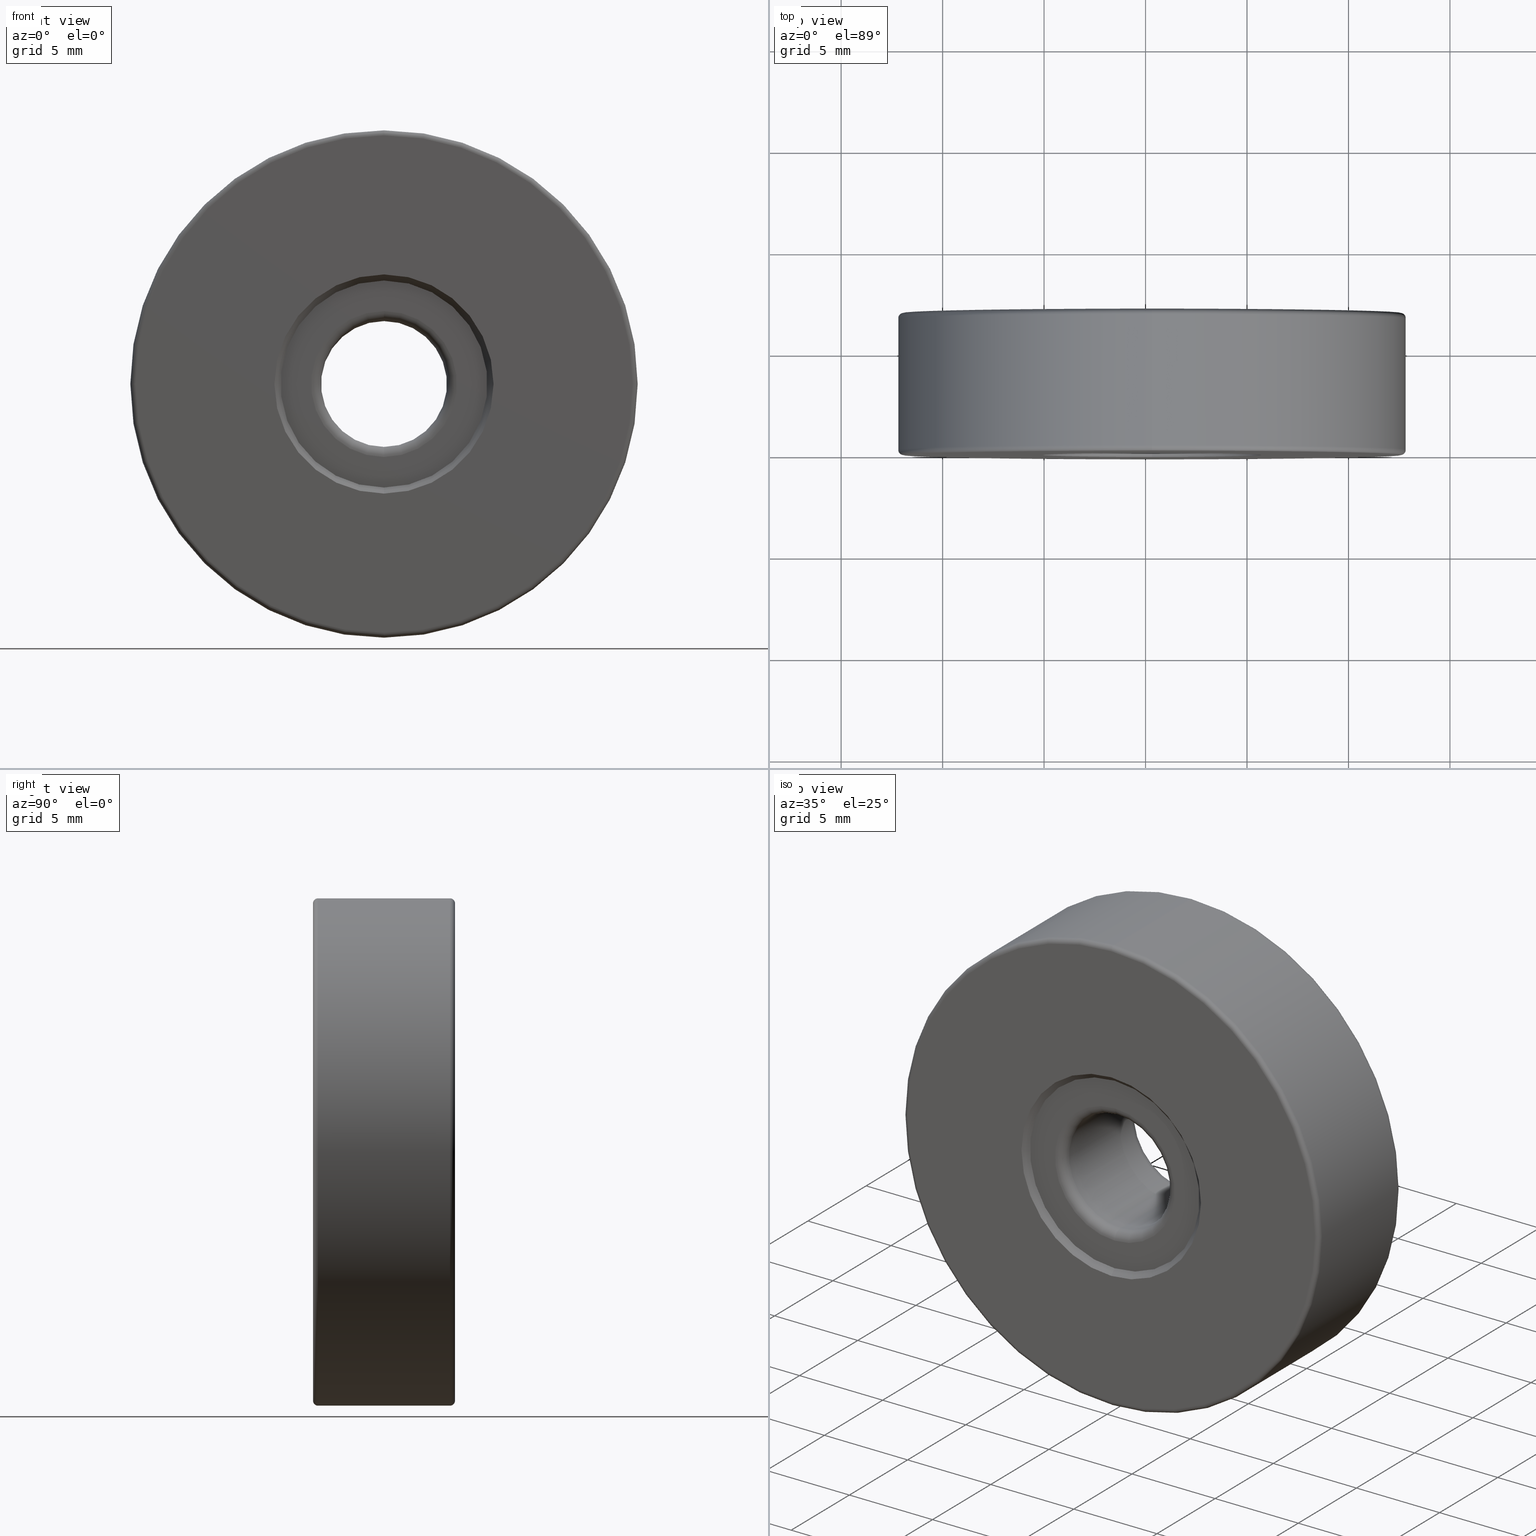
[diagram: canonical four-view strip — front | top / right | iso, engineering-drawing reading convention]
A machine part, canonical four-view strip (front | top / right | iso — engineering-drawing reading convention). The complete STEP part file that produces these views, byte-faithful:
ISO-10303-21;
HEADER;
FILE_DESCRIPTION (( 'STEP AP203' ),
    '1' );
FILE_NAME ('1.4.2.107_ZGH-25-DK7.STEP',
    '2022-04-15T03:00:48',
    ( '' ),
    ( '' ),
    'SwSTEP 2.0',
    'SolidWorks 2021',
    '' );
FILE_SCHEMA (( 'CONFIG_CONTROL_DESIGN' ));
ENDSEC;

DATA;
#1 = APPLICATION_PROTOCOL_DEFINITION ( 'international standard', 'config_control_design', 1994, #173 ) ;
#2 = DIRECTION ( 'NONE',  ( -0.0000000000000000000, -1.000000000000000000, -0.0000000000000000000 ) ) ;
#3 = ORIENTED_EDGE ( 'NONE', *, *, #190, .T. ) ;
#4 = APPROVAL_DATE_TIME ( #433, #405 ) ;
#5 = CARTESIAN_POINT ( 'NONE',  ( -4.682026255059964726, -5.094975976998274980, 19.60000000000000142 ) ) ;
#6 = AXIS2_PLACEMENT_3D ( 'NONE', #112, #306, #529 ) ;
#7 = CIRCLE ( 'NONE', #170, 3.599999999999999201 ) ;
#8 = EDGE_LOOP ( 'NONE', ( #39, #491, #521, #29 ) ) ;
#9 = EDGE_CURVE ( 'NONE', #498, #271, #179, .T. ) ;
#10 = DIRECTION ( 'NONE',  ( -0.0000000000000000000, -1.000000000000000000, -0.0000000000000000000 ) ) ;
#11 = EDGE_LOOP ( 'NONE', ( #349, #116, #14, #500 ) ) ;
#12 = ADVANCED_FACE ( 'NONE', ( #412 ), #534, .T. ) ;
#13 = LINE ( 'NONE', #576, #354 ) ;
#14 = ORIENTED_EDGE ( 'NONE', *, *, #590, .T. ) ;
#15 = PERSON_AND_ORGANIZATION ( #296, #86 ) ;
#16 = DIRECTION ( 'NONE',  ( -0.0000000000000000000, -1.000000000000000000, -0.0000000000000000000 ) ) ;
#17 = ORIENTED_EDGE ( 'NONE', *, *, #336, .F. ) ;
#18 = AXIS2_PLACEMENT_3D ( 'NONE', #568, #383, #51 ) ;
#19 = DIRECTION ( 'NONE',  ( 0.0000000000000000000, 0.0000000000000000000, 1.000000000000000000 ) ) ;
#20 = ORIENTED_EDGE ( 'NONE', *, *, #9, .T. ) ;
#21 = DIRECTION ( 'NONE',  ( -0.0000000000000000000, -1.000000000000000000, -0.0000000000000000000 ) ) ;
#22 = ORIENTED_EDGE ( 'NONE', *, *, #252, .T. ) ;
#23 = EDGE_CURVE ( 'NONE', #404, #267, #274, .T. ) ;
#24 = DIRECTION ( 'NONE',  ( 0.0000000000000000000, -1.000000000000000000, 0.0000000000000000000 ) ) ;
#25 = CARTESIAN_POINT ( 'NONE',  ( -4.682026255059964726, -5.094975976998274980, 25.00000000000000000 ) ) ;
#26 = CIRCLE ( 'NONE', #408, 12.50000000000000355 ) ;
#27 = APPROVAL_PERSON_ORGANIZATION ( #137, #98, #82 ) ;
#28 = CARTESIAN_POINT ( 'NONE',  ( -4.682026255059964726, 1.605024023001732303, 25.00000000000000000 ) ) ;
#29 = ORIENTED_EDGE ( 'NONE', *, *, #538, .F. ) ;
#30 = EDGE_CURVE ( 'NONE', #132, #259, #220, .T. ) ;
#31 = CARTESIAN_POINT ( 'NONE',  ( -4.682026255059962949, 1.905024023001725242, 37.50000000000000711 ) ) ;
#32 = CARTESIAN_POINT ( 'NONE',  ( -4.682026255059964726, -4.844975976998274980, 25.00000000000000000 ) ) ;
#33 = DIRECTION ( 'NONE',  ( 1.000000000000000000, -0.0000000000000000000, 1.224646799147353207E-16 ) ) ;
#34 = EDGE_CURVE ( 'NONE', #103, #241, #543, .T. ) ;
#35 = DIRECTION ( 'NONE',  ( 0.0000000000000000000, 1.000000000000000000, 0.0000000000000000000 ) ) ;
#36 = TOROIDAL_SURFACE ( 'NONE', #6, 12.25000000000000000, 0.2500000000000000000 ) ;
#37 = DATE_AND_TIME ( #616, #235 ) ;
#38 = CC_DESIGN_SECURITY_CLASSIFICATION ( #375, ( #396 ) ) ;
#39 = ORIENTED_EDGE ( 'NONE', *, *, #501, .F. ) ;
#40 = ADVANCED_FACE ( 'NONE', ( #454, #592 ), #169, .F. ) ;
#41 =( NAMED_UNIT ( * ) SI_UNIT ( $, .STERADIAN. ) SOLID_ANGLE_UNIT ( ) );
#42 = DIRECTION ( 'NONE',  ( 0.0000000000000000000, -1.000000000000000000, 0.0000000000000000000 ) ) ;
#43 = EDGE_LOOP ( 'NONE', ( #557, #251 ) ) ;
#44 = AXIS2_PLACEMENT_3D ( 'NONE', #536, #497, #157 ) ;
#45 = CARTESIAN_POINT ( 'NONE',  ( -4.682026255059964726, -5.094975976998274980, 25.00000000000000000 ) ) ;
#46 = AXIS2_PLACEMENT_3D ( 'NONE', #348, #62, #253 ) ;
#47 = FACE_OUTER_BOUND ( 'NONE', #215, .T. ) ;
#48 = LOCAL_TIME ( 11, 0, 48.00000000000000000, #284 ) ;
#49 = ORIENTED_EDGE ( 'NONE', *, *, #281, .T. ) ;
#50 = FACE_OUTER_BOUND ( 'NONE', #8, .T. ) ;
#51 = DIRECTION ( 'NONE',  ( 0.0000000000000000000, 0.0000000000000000000, 1.000000000000000000 ) ) ;
#52 = EDGE_CURVE ( 'NONE', #313, #259, #551, .T. ) ;
#53 = VERTEX_POINT ( 'NONE', #79 ) ;
#54 = CALENDAR_DATE ( 2022, 15, 4 ) ;
#55 = CARTESIAN_POINT ( 'NONE',  ( -4.682026255059964726, 1.655024023001725464, 25.00000000000000000 ) ) ;
#56 = AXIS2_PLACEMENT_3D ( 'NONE', #25, #126, #318 ) ;
#57 = VERTEX_POINT ( 'NONE', #462 ) ;
#58 = EDGE_CURVE ( 'NONE', #610, #158, #406, .T. ) ;
#59 = DIRECTION ( 'NONE',  ( 0.0000000000000000000, 0.0000000000000000000, 1.000000000000000000 ) ) ;
#60 = ORIENTED_EDGE ( 'NONE', *, *, #388, .F. ) ;
#61 = EDGE_CURVE ( 'NONE', #533, #57, #385, .T. ) ;
#62 = DIRECTION ( 'NONE',  ( 0.0000000000000000000, 1.000000000000000000, 0.0000000000000000000 ) ) ;
#63 = ORIENTED_EDGE ( 'NONE', *, *, #344, .T. ) ;
#64 = DATE_TIME_ROLE ( 'classification_date' ) ;
#65 = DIRECTION ( 'NONE',  ( 8.659560562354946417E-17, -0.7071067811865465735, 0.7071067811865485719 ) ) ;
#66 = ORIENTED_EDGE ( 'NONE', *, *, #467, .F. ) ;
#67 = AXIS2_PLACEMENT_3D ( 'NONE', #55, #16, #59 ) ;
#68 = AXIS2_PLACEMENT_3D ( 'NONE', #90, #564, #477 ) ;
#69 = DIRECTION ( 'NONE',  ( 0.0000000000000000000, 1.000000000000000000, 0.0000000000000000000 ) ) ;
#70 = EDGE_CURVE ( 'NONE', #182, #466, #266, .T. ) ;
#71 = ORIENTED_EDGE ( 'NONE', *, *, #190, .F. ) ;
#72 = DIRECTION ( 'NONE',  ( 0.0000000000000000000, 0.0000000000000000000, 1.000000000000000000 ) ) ;
#73 = APPLICATION_CONTEXT ( 'configuration controlled 3d designs of mechanical parts and assemblies' ) ;
#74 = CARTESIAN_POINT ( 'NONE',  ( -4.682026255059962949, -4.794975976998276046, 28.60000000000000142 ) ) ;
#75 = ORIENTED_EDGE ( 'NONE', *, *, #52, .T. ) ;
#76 = AXIS2_PLACEMENT_3D ( 'NONE', #327, #89, #229 ) ;
#77 = ADVANCED_FACE ( 'NONE', ( #291, #329 ), #283, .T. ) ;
#78 = CARTESIAN_POINT ( 'NONE',  ( -4.682026255059964726, -4.294975976998275158, 21.40000000000000213 ) ) ;
#79 = CARTESIAN_POINT ( 'NONE',  ( -4.682026255059964726, 1.905024023001725242, 30.39999999999999503 ) ) ;
#80 = FACE_OUTER_BOUND ( 'NONE', #582, .T. ) ;
#81 = DIRECTION ( 'NONE',  ( 0.0000000000000000000, 0.0000000000000000000, 1.000000000000000000 ) ) ;
#82 = APPROVAL_ROLE ( '' ) ;
#83 = ADVANCED_FACE ( 'NONE', ( #196 ), #117, .T. ) ;
#84 = CARTESIAN_POINT ( 'NONE',  ( -4.682026255059964726, -5.094975976998274980, 25.00000000000000000 ) ) ;
#85 = AXIS2_PLACEMENT_3D ( 'NONE', #84, #597, #176 ) ;
#86 = ORGANIZATION ( 'δָ��', 'δָ��', '' ) ;
#87 = CARTESIAN_POINT ( 'NONE',  ( -4.682026255059963837, -4.794975976998275158, 30.10000000000000142 ) ) ;
#88 = APPROVAL_DATE_TIME ( #37, #98 ) ;
#89 = DIRECTION ( 'NONE',  ( -0.0000000000000000000, -1.000000000000000000, -0.0000000000000000000 ) ) ;
#90 = CARTESIAN_POINT ( 'NONE',  ( -4.682026255059964726, -4.844975976998274980, 37.25000000000000711 ) ) ;
#91 = FACE_OUTER_BOUND ( 'NONE', #540, .T. ) ;
#92 = ADVANCED_FACE ( 'NONE', ( #91 ), #372, .T. ) ;
#93 = AXIS2_PLACEMENT_3D ( 'NONE', #409, #503, #81 ) ;
#94 = DIRECTION ( 'NONE',  ( 0.0000000000000000000, 0.0000000000000000000, 1.000000000000000000 ) ) ;
#95 = VECTOR ( 'NONE', #248, 1000.000000000000000 ) ;
#96 = DIRECTION ( 'NONE',  ( 0.0000000000000000000, 0.0000000000000000000, -1.000000000000000000 ) ) ;
#97 = APPROVAL_PERSON_ORGANIZATION ( #333, #405, #159 ) ;
#98 = APPROVAL ( #515, 'δָ��' ) ;
#99 = CARTESIAN_POINT ( 'NONE',  ( -4.682026255059964726, 1.905024023001725242, 25.00000000000000000 ) ) ;
#100 = VERTEX_POINT ( 'NONE', #150 ) ;
#101 = CALENDAR_DATE ( 2022, 15, 4 ) ;
#102 = LINE ( 'NONE', #483, #552 ) ;
#103 = VERTEX_POINT ( 'NONE', #231 ) ;
#104 = AXIS2_PLACEMENT_3D ( 'NONE', #32, #184, #516 ) ;
#105 = CARTESIAN_POINT ( 'NONE',  ( -4.682026255059964726, 1.655024023001725464, 37.25000000000000711 ) ) ;
#106 = AXIS2_PLACEMENT_3D ( 'NONE', #358, #602, #413 ) ;
#107 = LOCAL_TIME ( 11, 0, 48.00000000000000000, #303 ) ;
#108 = VERTEX_POINT ( 'NONE', #87 ) ;
#109 = DATE_AND_TIME ( #54, #128 ) ;
#110 = CARTESIAN_POINT ( 'NONE',  ( -4.682026255059964726, -5.094975976998274980, 25.00000000000000000 ) ) ;
#111 = ORIENTED_EDGE ( 'NONE', *, *, #473, .F. ) ;
#112 = CARTESIAN_POINT ( 'NONE',  ( -4.682026255059964726, -4.844975976998274980, 25.00000000000000000 ) ) ;
#113 = ORIENTED_EDGE ( 'NONE', *, *, #353, .T. ) ;
#114 = ADVANCED_FACE ( 'NONE', ( #146 ), #290, .F. ) ;
#115 = DIRECTION ( 'NONE',  ( 0.0000000000000000000, 0.0000000000000000000, -1.000000000000000000 ) ) ;
#116 = ORIENTED_EDGE ( 'NONE', *, *, #272, .F. ) ;
#117 = TOROIDAL_SURFACE ( 'NONE', #18, 12.25000000000000000, 0.2500000000000000000 ) ;
#118 = AXIS2_PLACEMENT_3D ( 'NONE', #469, #511, #236 ) ;
#119 = APPROVAL_PERSON_ORGANIZATION ( #342, #442, #152 ) ;
#120 = DIRECTION ( 'NONE',  ( -1.000000000000000000, 0.0000000000000000000, 0.0000000000000000000 ) ) ;
#121 = ORIENTED_EDGE ( 'NONE', *, *, #353, .F. ) ;
#122 = CARTESIAN_POINT ( 'NONE',  ( -4.682026255059964726, 1.655024023001725464, 25.00000000000000000 ) ) ;
#123 = ORIENTED_EDGE ( 'NONE', *, *, #528, .F. ) ;
#124 = ADVANCED_FACE ( 'NONE', ( #47 ), #127, .F. ) ;
#125 = DIRECTION ( 'NONE',  ( 0.0000000000000000000, -1.000000000000000000, 0.0000000000000000000 ) ) ;
#126 = DIRECTION ( 'NONE',  ( 0.0000000000000000000, 1.000000000000000000, 0.0000000000000000000 ) ) ;
#127 = CONICAL_SURFACE ( 'NONE', #485, 5.100000000000000533, 0.7853981633974526089 ) ;
#128 = LOCAL_TIME ( 11, 0, 48.00000000000000000, #439 ) ;
#129 = DIRECTION ( 'NONE',  ( 0.0000000000000000000, 0.0000000000000000000, -1.000000000000000000 ) ) ;
#130 = ORIENTED_EDGE ( 'NONE', *, *, #336, .T. ) ;
#131 = CARTESIAN_POINT ( 'NONE',  ( -4.682026255059964726, 1.905024023001725242, 25.00000000000000000 ) ) ;
#132 = VERTEX_POINT ( 'NONE', #280 ) ;
#133 = ADVANCED_FACE ( 'NONE', ( #609 ), #216, .T. ) ;
#134 =( LENGTH_UNIT ( ) NAMED_UNIT ( * ) SI_UNIT ( .MILLI., .METRE. ) );
#135 = CARTESIAN_POINT ( 'NONE',  ( -4.682026255059963837, 1.605024023001725642, 21.40000000000000213 ) ) ;
#136 = AXIS2_PLACEMENT_3D ( 'NONE', #598, #35, #507 ) ;
#137 = PERSON_AND_ORGANIZATION ( #296, #86 ) ;
#138 = DIRECTION ( 'NONE',  ( 0.0000000000000000000, 1.000000000000000000, 0.0000000000000000000 ) ) ;
#139 = MANIFOLD_SURFACE_SHAPE_REPRESENTATION ( '1.4.2.107_ZGH-25-DK7', ( #586, #310 ), #149 ) ;
#140 = ORIENTED_EDGE ( 'NONE', *, *, #599, .T. ) ;
#141 = CARTESIAN_POINT ( 'NONE',  ( -4.682026255059964726, -5.094975976998274980, 25.00000000000000000 ) ) ;
#142 = CARTESIAN_POINT ( 'NONE',  ( -4.682026255059962949, -4.844975976998274980, 37.50000000000000711 ) ) ;
#143 = ADVANCED_FACE ( 'NONE', ( #50 ), #277, .T. ) ;
#144 = ORIENTED_EDGE ( 'NONE', *, *, #451, .F. ) ;
#145 = DESIGN_CONTEXT ( 'detailed design', #73, 'design' ) ;
#146 = FACE_OUTER_BOUND ( 'NONE', #165, .T. ) ;
#147 = PRODUCT_RELATED_PRODUCT_CATEGORY ( 'detail', '', ( #209 ) ) ;
#148 = VECTOR ( 'NONE', #222, 1000.000000000000000 ) ;
#149 =( GEOMETRIC_REPRESENTATION_CONTEXT ( 3 ) GLOBAL_UNCERTAINTY_ASSIGNED_CONTEXT ( ( #399 ) ) GLOBAL_UNIT_ASSIGNED_CONTEXT ( ( #134, #330, #41 ) ) REPRESENTATION_CONTEXT ( 'NONE', 'WORKASPACE' ) );
#150 = CARTESIAN_POINT ( 'NONE',  ( -4.682026255059963837, -5.094975976998274980, 30.39999999999999858 ) ) ;
#151 = EDGE_CURVE ( 'NONE', #398, #53, #197, .T. ) ;
#152 = APPROVAL_ROLE ( '' ) ;
#153 = CARTESIAN_POINT ( 'NONE',  ( -4.682026255059964726, -5.094975976998274980, 37.25000000000000711 ) ) ;
#154 = ORIENTED_EDGE ( 'NONE', *, *, #70, .F. ) ;
#155 = SECURITY_CLASSIFICATION_LEVEL ( 'unclassified' ) ;
#156 = CC_DESIGN_DATE_AND_TIME_ASSIGNMENT ( #109, #64, ( #375 ) ) ;
#157 = DIRECTION ( 'NONE',  ( 0.0000000000000000000, 0.0000000000000000000, 1.000000000000000000 ) ) ;
#158 = VERTEX_POINT ( 'NONE', #142 ) ;
#159 = APPROVAL_ROLE ( '' ) ;
#160 = AXIS2_PLACEMENT_3D ( 'NONE', #240, #2, #115 ) ;
#161 = PLANE ( 'NONE',  #46 ) ;
#162 = CIRCLE ( 'NONE', #601, 3.099999999999998757 ) ;
#163 = ORIENTED_EDGE ( 'NONE', *, *, #455, .F. ) ;
#164 = DIRECTION ( 'NONE',  ( 0.0000000000000000000, 0.0000000000000000000, 1.000000000000000000 ) ) ;
#165 = EDGE_LOOP ( 'NONE', ( #204, #393, #587, #75 ) ) ;
#166 = CARTESIAN_POINT ( 'NONE',  ( -4.682026255059962949, 1.655024023001725464, 12.50000000000000000 ) ) ;
#167 = ORIENTED_EDGE ( 'NONE', *, *, #262, .T. ) ;
#168 = CARTESIAN_POINT ( 'NONE',  ( -4.682026255059964726, -5.094975976998274980, 28.10000000000000142 ) ) ;
#169 = PLANE ( 'NONE',  #56 ) ;
#170 = AXIS2_PLACEMENT_3D ( 'NONE', #309, #10, #343 ) ;
#171 = ADVANCED_FACE ( 'NONE', ( #331, #617 ), #520, .T. ) ;
#172 = CARTESIAN_POINT ( 'NONE',  ( -4.682026255059964726, 1.105024023001725864, 25.00000000000000000 ) ) ;
#173 = APPLICATION_CONTEXT ( 'configuration controlled 3d designs of mechanical parts and assemblies' ) ;
#174 = ORIENTED_EDGE ( 'NONE', *, *, #574, .F. ) ;
#175 = DIRECTION ( 'NONE',  ( 8.659560562354969836E-17, 0.7071067811865444641, -0.7071067811865505703 ) ) ;
#176 = DIRECTION ( 'NONE',  ( 0.0000000000000000000, 0.0000000000000000000, 1.000000000000000000 ) ) ;
#177 = DIRECTION ( 'NONE',  ( 0.0000000000000000000, 0.0000000000000000000, -1.000000000000000000 ) ) ;
#178 = ORIENTED_EDGE ( 'NONE', *, *, #560, .F. ) ;
#179 = CIRCLE ( 'NONE', #346, 0.5000000000000004441 ) ;
#180 = VECTOR ( 'NONE', #453, 1000.000000000000000 ) ;
#181 = DIRECTION ( 'NONE',  ( 0.0000000000000000000, 0.0000000000000000000, 1.000000000000000000 ) ) ;
#182 = VERTEX_POINT ( 'NONE', #135 ) ;
#183 = DIRECTION ( 'NONE',  ( 0.0000000000000000000, 0.0000000000000000000, -1.000000000000000000 ) ) ;
#184 = DIRECTION ( 'NONE',  ( 0.0000000000000000000, 1.000000000000000000, 0.0000000000000000000 ) ) ;
#185 = CARTESIAN_POINT ( 'NONE',  ( -4.682026255059964726, 1.905024023001725242, 25.00000000000000000 ) ) ;
#186 = ORIENTED_EDGE ( 'NONE', *, *, #294, .F. ) ;
#187 = AXIS2_PLACEMENT_3D ( 'NONE', #110, #578, #532 ) ;
#188 = AXIS2_PLACEMENT_3D ( 'NONE', #131, #219, #407 ) ;
#189 = CARTESIAN_POINT ( 'NONE',  ( -4.682026255059964726, -4.794975976998275158, 25.00000000000000000 ) ) ;
#190 = EDGE_CURVE ( 'NONE', #271, #132, #495, .T. ) ;
#191 = DIRECTION ( 'NONE',  ( 0.0000000000000000000, -0.0000000000000000000, 1.000000000000000000 ) ) ;
#192 = ORIENTED_EDGE ( 'NONE', *, *, #23, .T. ) ;
#193 = DIRECTION ( 'NONE',  ( 0.0000000000000000000, 0.0000000000000000000, 1.000000000000000000 ) ) ;
#194 = DIRECTION ( 'NONE',  ( 0.0000000000000000000, 0.0000000000000000000, 1.000000000000000000 ) ) ;
#195 = DIRECTION ( 'NONE',  ( 0.0000000000000000000, 0.0000000000000000000, 1.000000000000000000 ) ) ;
#196 = FACE_OUTER_BOUND ( 'NONE', #244, .T. ) ;
#197 = CIRCLE ( 'NONE', #297, 5.399999999999995026 ) ;
#198 = COORDINATED_UNIVERSAL_TIME_OFFSET ( 8, 0, .AHEAD. ) ;
#199 = AXIS2_PLACEMENT_3D ( 'NONE', #411, #69, #596 ) ;
#200 = CARTESIAN_POINT ( 'NONE',  ( -4.682026255059964726, -4.794975976998275158, 25.00000000000000000 ) ) ;
#201 = CARTESIAN_POINT ( 'NONE',  ( -4.682026255059964726, -4.294975976998275158, 28.10000000000000142 ) ) ;
#202 = ORIENTED_EDGE ( 'NONE', *, *, #492, .T. ) ;
#203 = DIRECTION ( 'NONE',  ( -0.0000000000000000000, 1.000000000000000000, -0.0000000000000000000 ) ) ;
#204 = ORIENTED_EDGE ( 'NONE', *, *, #30, .F. ) ;
#205 = CARTESIAN_POINT ( 'NONE',  ( -4.682026255059964726, 1.605024023001732303, 30.10000000000000142 ) ) ;
#206 = ADVANCED_FACE ( 'NONE', ( #478 ), #287, .F. ) ;
#207 = AXIS2_PLACEMENT_3D ( 'NONE', #420, #522, #193 ) ;
#208 = ORIENTED_EDGE ( 'NONE', *, *, #9, .F. ) ;
#209 = PRODUCT ( '1.4.2.107_ZGH-25-DK7', '1.4.2.107_ZGH-25-DK7', '', ( #382 ) ) ;
#210 = DIRECTION ( 'NONE',  ( 0.0000000000000000000, 0.0000000000000000000, 1.000000000000000000 ) ) ;
#211 = EDGE_LOOP ( 'NONE', ( #17, #49, #192, #174 ) ) ;
#212 = CARTESIAN_POINT ( 'NONE',  ( -4.682026255059964726, 1.905024023001725242, 25.00000000000000000 ) ) ;
#213 = VERTEX_POINT ( 'NONE', #397 ) ;
#214 = DIRECTION ( 'NONE',  ( 0.0000000000000000000, 0.0000000000000000000, -1.000000000000000000 ) ) ;
#215 = EDGE_LOOP ( 'NONE', ( #144, #518, #186, #121 ) ) ;
#216 = TOROIDAL_SURFACE ( 'NONE', #561, 3.600000000000000089, 0.5000000000000000000 ) ;
#217 = AXIS2_PLACEMENT_3D ( 'NONE', #78, #463, #223 ) ;
#218 = CC_DESIGN_PERSON_AND_ORGANIZATION_ASSIGNMENT ( #15, #577, ( #396 ) ) ;
#219 = DIRECTION ( 'NONE',  ( -0.0000000000000000000, -1.000000000000000000, -0.0000000000000000000 ) ) ;
#220 = LINE ( 'NONE', #550, #394 ) ;
#221 = DIRECTION ( 'NONE',  ( -0.0000000000000000000, -1.000000000000000000, -0.0000000000000000000 ) ) ;
#222 = DIRECTION ( 'NONE',  ( 0.0000000000000000000, -0.7071067811865465735, -0.7071067811865485719 ) ) ;
#223 = DIRECTION ( 'NONE',  ( 0.0000000000000000000, 0.0000000000000000000, 1.000000000000000000 ) ) ;
#224 = EDGE_LOOP ( 'NONE', ( #232, #130, #276, #481 ) ) ;
#225 = AXIS2_PLACEMENT_3D ( 'NONE', #237, #523, #96 ) ;
#226 = CONICAL_SURFACE ( 'NONE', #573, 5.399999999999998579, 0.7853981633974497223 ) ;
#227 = DIRECTION ( 'NONE',  ( -0.0000000000000000000, 1.000000000000000000, -0.0000000000000000000 ) ) ;
#228 = DIRECTION ( 'NONE',  ( -0.0000000000000000000, 1.000000000000000000, -0.0000000000000000000 ) ) ;
#229 = DIRECTION ( 'NONE',  ( 0.0000000000000000000, 0.0000000000000000000, 1.000000000000000000 ) ) ;
#230 = CALENDAR_DATE ( 2022, 15, 4 ) ;
#231 = CARTESIAN_POINT ( 'NONE',  ( -4.682026255059962949, -5.094975976998274980, 12.75000000000000178 ) ) ;
#232 = ORIENTED_EDGE ( 'NONE', *, *, #560, .T. ) ;
#233 = TOROIDAL_SURFACE ( 'NONE', #524, 12.25000000000000000, 0.2500000000000000000 ) ;
#234 = CIRCLE ( 'NONE', #593, 0.5000000000000004441 ) ;
#235 = LOCAL_TIME ( 11, 0, 48.00000000000000000, #519 ) ;
#236 = DIRECTION ( 'NONE',  ( 0.0000000000000000000, 0.0000000000000000000, -1.000000000000000000 ) ) ;
#237 = CARTESIAN_POINT ( 'NONE',  ( -4.682026255059964726, -4.294975976998275158, 25.00000000000000000 ) ) ;
#238 = EDGE_LOOP ( 'NONE', ( #178, #361 ) ) ;
#239 = FACE_OUTER_BOUND ( 'NONE', #211, .T. ) ;
#240 = CARTESIAN_POINT ( 'NONE',  ( -4.682026255059964726, -5.094975976998274980, 25.00000000000000000 ) ) ;
#241 = VERTEX_POINT ( 'NONE', #153 ) ;
#242 = PERSON_AND_ORGANIZATION ( #296, #86 ) ;
#243 = ADVANCED_FACE ( 'NONE', ( #434 ), #233, .T. ) ;
#244 = EDGE_LOOP ( 'NONE', ( #111, #569, #510, #311 ) ) ;
#245 = OPEN_SHELL ( 'NONE', ( #206, #12, #431, #243, #124, #133, #369, #92, #436, #114, #143, #381, #480, #77, #83, #517, #326, #40, #607, #171 ) ) ;
#246 = APPROVAL_DATE_TIME ( #386, #442 ) ;
#247 = CIRCLE ( 'NONE', #373, 0.2500000000000002220 ) ;
#248 = DIRECTION ( 'NONE',  ( 0.0000000000000000000, 0.7071067811865444641, 0.7071067811865505703 ) ) ;
#249 = ORIENTED_EDGE ( 'NONE', *, *, #30, .T. ) ;
#250 = CYLINDRICAL_SURFACE ( 'NONE', #288, 3.099999999999998757 ) ;
#251 = ORIENTED_EDGE ( 'NONE', *, *, #151, .T. ) ;
#252 = EDGE_CURVE ( 'NONE', #213, #341, #298, .T. ) ;
#253 = DIRECTION ( 'NONE',  ( 0.0000000000000000000, -0.0000000000000000000, 1.000000000000000000 ) ) ;
#254 = ORIENTED_EDGE ( 'NONE', *, *, #402, .F. ) ;
#255 = CIRCLE ( 'NONE', #437, 3.599999999999999201 ) ;
#256 = DIRECTION ( 'NONE',  ( 0.0000000000000000000, 1.000000000000000000, 0.0000000000000000000 ) ) ;
#257 = CONICAL_SURFACE ( 'NONE', #505, 5.100000000000000533, 0.7853981633974526089 ) ;
#258 = LOCAL_TIME ( 11, 0, 48.00000000000000000, #198 ) ;
#259 = VERTEX_POINT ( 'NONE', #448 ) ;
#260 = CARTESIAN_POINT ( 'NONE',  ( -4.682026255059964726, -4.794975976998276046, 21.40000000000000213 ) ) ;
#261 = EDGE_LOOP ( 'NONE', ( #425, #324 ) ) ;
#262 = EDGE_CURVE ( 'NONE', #365, #554, #504, .T. ) ;
#263 = LINE ( 'NONE', #316, #535 ) ;
#264 = ORIENTED_EDGE ( 'NONE', *, *, #455, .T. ) ;
#265 = CARTESIAN_POINT ( 'NONE',  ( -4.682026255059964726, 1.105024023001725864, 28.60000000000000142 ) ) ;
#266 = CIRCLE ( 'NONE', #76, 3.599999999999999201 ) ;
#267 = VERTEX_POINT ( 'NONE', #5 ) ;
#268 = AXIS2_PLACEMENT_3D ( 'NONE', #265, #120, #181 ) ;
#269 = CC_DESIGN_APPROVAL ( #405, ( #396 ) ) ;
#270 = CARTESIAN_POINT ( 'NONE',  ( -4.682026255059964726, 1.905024023001725242, 37.25000000000000711 ) ) ;
#271 = VERTEX_POINT ( 'NONE', #201 ) ;
#272 = EDGE_CURVE ( 'NONE', #241, #103, #572, .T. ) ;
#273 = DIRECTION ( 'NONE',  ( -0.0000000000000000000, -1.000000000000000000, -0.0000000000000000000 ) ) ;
#274 = LINE ( 'NONE', #464, #148 ) ;
#275 = PERSON_AND_ORGANIZATION_ROLE ( 'design_owner' ) ;
#276 = ORIENTED_EDGE ( 'NONE', *, *, #599, .F. ) ;
#277 = TOROIDAL_SURFACE ( 'NONE', #583, 3.600000000000000089, 0.5000000000000000000 ) ;
#278 = AXIS2_PLACEMENT_3D ( 'NONE', #445, #125, #360 ) ;
#279 = CC_DESIGN_APPROVAL ( #98, ( #391 ) ) ;
#280 = CARTESIAN_POINT ( 'NONE',  ( -4.682026255059964726, -4.294975976998275158, 21.90000000000000213 ) ) ;
#281 = EDGE_CURVE ( 'NONE', #108, #404, #308, .T. ) ;
#282 = PERSON_AND_ORGANIZATION ( #296, #86 ) ;
#283 = PLANE ( 'NONE',  #417 ) ;
#284 = COORDINATED_UNIVERSAL_TIME_OFFSET ( 8, 0, .AHEAD. ) ;
#285 = DIRECTION ( 'NONE',  ( 0.0000000000000000000, -1.000000000000000000, 0.0000000000000000000 ) ) ;
#286 = ORIENTED_EDGE ( 'NONE', *, *, #538, .T. ) ;
#287 = CONICAL_SURFACE ( 'NONE', #160, 5.399999999999998579, 0.7853981633974497223 ) ;
#288 = AXIS2_PLACEMENT_3D ( 'NONE', #443, #203, #490 ) ;
#289 = CARTESIAN_POINT ( 'NONE',  ( -4.682026255059964726, -5.094975976998274980, 25.00000000000000000 ) ) ;
#290 = CYLINDRICAL_SURFACE ( 'NONE', #465, 3.099999999999998757 ) ;
#291 = FACE_OUTER_BOUND ( 'NONE', #261, .T. ) ;
#292 = APPROVAL_STATUS ( 'not_yet_approved' ) ;
#293 = DIRECTION ( 'NONE',  ( -0.0000000000000000000, 1.000000000000000000, -0.0000000000000000000 ) ) ;
#294 = EDGE_CURVE ( 'NONE', #53, #398, #317, .T. ) ;
#295 = ORIENTED_EDGE ( 'NONE', *, *, #262, .F. ) ;
#296 = PERSON ( 'δָ��', 'δָ��', 'δָ��', ('δָ��'), ('δָ��'), ('δָ��') ) ;
#297 = AXIS2_PLACEMENT_3D ( 'NONE', #606, #558, #377 ) ;
#298 = CIRCLE ( 'NONE', #67, 12.50000000000000355 ) ;
#299 = CIRCLE ( 'NONE', #268, 0.5000000000000004441 ) ;
#300 = DIRECTION ( 'NONE',  ( -0.0000000000000000000, -1.000000000000000000, -0.0000000000000000000 ) ) ;
#301 = EDGE_LOOP ( 'NONE', ( #338, #295, #113, #542 ) ) ;
#302 = EDGE_CURVE ( 'NONE', #530, #498, #255, .T. ) ;
#303 = COORDINATED_UNIVERSAL_TIME_OFFSET ( 8, 0, .AHEAD. ) ;
#304 = CARTESIAN_POINT ( 'NONE',  ( -4.682026255059964726, 1.605024023001725419, 30.10000000000000142 ) ) ;
#305 = ORIENTED_EDGE ( 'NONE', *, *, #410, .F. ) ;
#306 = DIRECTION ( 'NONE',  ( 0.0000000000000000000, 1.000000000000000000, 0.0000000000000000000 ) ) ;
#307 = ORIENTED_EDGE ( 'NONE', *, *, #528, .T. ) ;
#308 = CIRCLE ( 'NONE', #611, 5.100000000000000533 ) ;
#309 = CARTESIAN_POINT ( 'NONE',  ( -4.682026255059964726, 1.605024023001725419, 25.00000000000000000 ) ) ;
#310 = AXIS2_PLACEMENT_3D ( 'NONE', #608, #195, #570 ) ;
#311 = ORIENTED_EDGE ( 'NONE', *, *, #581, .F. ) ;
#312 = CARTESIAN_POINT ( 'NONE',  ( -4.682026255059964726, -4.294975976998275158, 25.00000000000000000 ) ) ;
#313 = VERTEX_POINT ( 'NONE', #387 ) ;
#314 = DIRECTION ( 'NONE',  ( 0.0000000000000000000, 1.000000000000000000, 0.0000000000000000000 ) ) ;
#315 = DIRECTION ( 'NONE',  ( 1.000000000000000000, 0.0000000000000000000, -1.224646799147353207E-16 ) ) ;
#316 = CARTESIAN_POINT ( 'NONE',  ( -4.682026255059963837, 1.605024023001732303, 19.90000000000000213 ) ) ;
#317 = CIRCLE ( 'NONE', #44, 5.399999999999995026 ) ;
#318 = DIRECTION ( 'NONE',  ( 0.0000000000000000000, -0.0000000000000000000, 1.000000000000000000 ) ) ;
#319 = CIRCLE ( 'NONE', #68, 0.2500000000000002220 ) ;
#320 = EDGE_CURVE ( 'NONE', #213, #533, #600, .T. ) ;
#321 = CARTESIAN_POINT ( 'NONE',  ( -4.682026255059962949, 1.655024023001725464, 12.75000000000000178 ) ) ;
#322 = ORIENTED_EDGE ( 'NONE', *, *, #302, .F. ) ;
#323 = DIRECTION ( 'NONE',  ( 0.0000000000000000000, 0.0000000000000000000, 1.000000000000000000 ) ) ;
#324 = ORIENTED_EDGE ( 'NONE', *, *, #581, .T. ) ;
#325 = DIRECTION ( 'NONE',  ( -0.0000000000000000000, -1.000000000000000000, -0.0000000000000000000 ) ) ;
#326 = ADVANCED_FACE ( 'NONE', ( #440 ), #36, .T. ) ;
#327 = CARTESIAN_POINT ( 'NONE',  ( -4.682026255059964726, 1.605024023001725419, 25.00000000000000000 ) ) ;
#328 = CIRCLE ( 'NONE', #106, 0.2500000000000002220 ) ;
#329 = FACE_BOUND ( 'NONE', #43, .T. ) ;
#330 =( NAMED_UNIT ( * ) PLANE_ANGLE_UNIT ( ) SI_UNIT ( $, .RADIAN. ) );
#331 = FACE_BOUND ( 'NONE', #429, .T. ) ;
#332 = ORIENTED_EDGE ( 'NONE', *, *, #410, .T. ) ;
#333 = PERSON_AND_ORGANIZATION ( #296, #86 ) ;
#334 = DIRECTION ( 'NONE',  ( 0.0000000000000000000, 0.0000000000000000000, 1.000000000000000000 ) ) ;
#335 = AXIS2_PLACEMENT_3D ( 'NONE', #105, #588, #539 ) ;
#336 = EDGE_CURVE ( 'NONE', #108, #100, #13, .T. ) ;
#337 = CIRCLE ( 'NONE', #468, 5.399999999999998579 ) ;
#338 = ORIENTED_EDGE ( 'NONE', *, *, #544, .F. ) ;
#339 = SHAPE_DEFINITION_REPRESENTATION ( #415, #139 ) ;
#340 = LINE ( 'NONE', #205, #95 ) ;
#341 = VERTEX_POINT ( 'NONE', #166 ) ;
#342 = PERSON_AND_ORGANIZATION ( #296, #86 ) ;
#343 = DIRECTION ( 'NONE',  ( 0.0000000000000000000, 0.0000000000000000000, 1.000000000000000000 ) ) ;
#344 = EDGE_CURVE ( 'NONE', #466, #182, #7, .T. ) ;
#345 = ORIENTED_EDGE ( 'NONE', *, *, #473, .T. ) ;
#346 = AXIS2_PLACEMENT_3D ( 'NONE', #359, #315, #414 ) ;
#347 = TOROIDAL_SURFACE ( 'NONE', #525, 3.600000000000000089, 0.5000000000000000000 ) ;
#348 = CARTESIAN_POINT ( 'NONE',  ( -4.682026255059964726, 1.605024023001725419, 25.00000000000000000 ) ) ;
#349 = ORIENTED_EDGE ( 'NONE', *, *, #427, .F. ) ;
#350 = ORIENTED_EDGE ( 'NONE', *, *, #362, .T. ) ;
#351 = CARTESIAN_POINT ( 'NONE',  ( -4.682026255059964726, 1.605024023001725419, 25.00000000000000000 ) ) ;
#352 = ORIENTED_EDGE ( 'NONE', *, *, #492, .F. ) ;
#353 = EDGE_CURVE ( 'NONE', #365, #53, #340, .T. ) ;
#354 = VECTOR ( 'NONE', #65, 1000.000000000000000 ) ;
#355 = CYLINDRICAL_SURFACE ( 'NONE', #613, 12.50000000000000000 ) ;
#356 = ORIENTED_EDGE ( 'NONE', *, *, #590, .F. ) ;
#357 = CC_DESIGN_PERSON_AND_ORGANIZATION_ASSIGNMENT ( #282, #471, ( #391 ) ) ;
#358 = CARTESIAN_POINT ( 'NONE',  ( -4.682026255059962949, -4.844975976998274980, 12.75000000000000178 ) ) ;
#359 = CARTESIAN_POINT ( 'NONE',  ( -4.682026255059963837, -4.294975976998275158, 28.60000000000000142 ) ) ;
#360 = DIRECTION ( 'NONE',  ( 0.0000000000000000000, 0.0000000000000000000, -1.000000000000000000 ) ) ;
#361 = ORIENTED_EDGE ( 'NONE', *, *, #281, .F. ) ;
#362 = EDGE_CURVE ( 'NONE', #341, #610, #102, .T. ) ;
#363 = DIRECTION ( 'NONE',  ( 0.0000000000000000000, 0.0000000000000000000, 1.000000000000000000 ) ) ;
#364 = AXIS2_PLACEMENT_3D ( 'NONE', #351, #256, #210 ) ;
#365 = VERTEX_POINT ( 'NONE', #304 ) ;
#366 = CIRCLE ( 'NONE', #217, 0.5000000000000004441 ) ;
#367 = DIRECTION ( 'NONE',  ( 0.0000000000000000000, 0.0000000000000000000, -1.000000000000000000 ) ) ;
#368 = ORIENTED_EDGE ( 'NONE', *, *, #555, .T. ) ;
#369 = ADVANCED_FACE ( 'NONE', ( #487 ), #250, .F. ) ;
#370 = CC_DESIGN_PERSON_AND_ORGANIZATION_ASSIGNMENT ( #395, #482, ( #396 ) ) ;
#371 = CARTESIAN_POINT ( 'NONE',  ( -4.682026255059964726, -4.294975976998275158, 25.00000000000000000 ) ) ;
#372 = TOROIDAL_SURFACE ( 'NONE', #512, 3.600000000000000089, 0.5000000000000000000 ) ;
#373 = AXIS2_PLACEMENT_3D ( 'NONE', #321, #33, #214 ) ;
#374 = CIRCLE ( 'NONE', #118, 3.599999999999999201 ) ;
#375 = SECURITY_CLASSIFICATION ( '', '', #155 ) ;
#376 = APPLICATION_PROTOCOL_DEFINITION ( 'international standard', 'config_control_design', 1994, #73 ) ;
#377 = DIRECTION ( 'NONE',  ( 0.0000000000000000000, 0.0000000000000000000, 1.000000000000000000 ) ) ;
#378 = ORIENTED_EDGE ( 'NONE', *, *, #451, .T. ) ;
#379 = DATE_AND_TIME ( #230, #48 ) ;
#380 = CARTESIAN_POINT ( 'NONE',  ( -4.682026255059964726, -4.794975976998275158, 25.00000000000000000 ) ) ;
#381 = ADVANCED_FACE ( 'NONE', ( #392, #580 ), #161, .T. ) ;
#382 = MECHANICAL_CONTEXT ( 'NONE', #173, 'mechanical' ) ;
#383 = DIRECTION ( 'NONE',  ( 0.0000000000000000000, 1.000000000000000000, 0.0000000000000000000 ) ) ;
#384 = ORIENTED_EDGE ( 'NONE', *, *, #34, .F. ) ;
#385 = CIRCLE ( 'NONE', #559, 12.25000000000000355 ) ;
#386 = DATE_AND_TIME ( #575, #258 ) ;
#387 = CARTESIAN_POINT ( 'NONE',  ( -4.682026255059964726, 1.105024023001725864, 28.10000000000000142 ) ) ;
#388 = EDGE_CURVE ( 'NONE', #132, #271, #447, .T. ) ;
#389 = CARTESIAN_POINT ( 'NONE',  ( -4.682026255059964726, 1.655024023001725464, 25.00000000000000000 ) ) ;
#390 = EDGE_LOOP ( 'NONE', ( #305, #22, #350, #459 ) ) ;
#391 = PRODUCT_DEFINITION ( 'δ֪', '', #396, #145 ) ;
#392 = FACE_BOUND ( 'NONE', #494, .T. ) ;
#393 = ORIENTED_EDGE ( 'NONE', *, *, #388, .T. ) ;
#394 = VECTOR ( 'NONE', #228, 1000.000000000000000 ) ;
#395 = PERSON_AND_ORGANIZATION ( #296, #86 ) ;
#396 = PRODUCT_DEFINITION_FORMATION_WITH_SPECIFIED_SOURCE ( '�κ�', '', #209, .NOT_KNOWN. ) ;
#397 = CARTESIAN_POINT ( 'NONE',  ( -4.682026255059964726, 1.655024023001725464, 37.50000000000000711 ) ) ;
#398 = VERTEX_POINT ( 'NONE', #499 ) ;
#399 = UNCERTAINTY_MEASURE_WITH_UNIT (LENGTH_MEASURE( 1.000000000000000082E-05 ), #134, 'distance_accuracy_value', 'NONE');
#400 = CARTESIAN_POINT ( 'NONE',  ( -4.682026255059964726, -4.794975976998275158, 25.00000000000000000 ) ) ;
#401 = ORIENTED_EDGE ( 'NONE', *, *, #61, .F. ) ;
#402 = EDGE_CURVE ( 'NONE', #271, #313, #416, .T. ) ;
#403 = CARTESIAN_POINT ( 'NONE',  ( -4.682026255059964726, 1.605024023001725419, 25.00000000000000000 ) ) ;
#404 = VERTEX_POINT ( 'NONE', #450 ) ;
#405 = APPROVAL ( #292, 'δָ��' ) ;
#406 = CIRCLE ( 'NONE', #104, 12.50000000000000355 ) ;
#407 = DIRECTION ( 'NONE',  ( 0.0000000000000000000, 0.0000000000000000000, -1.000000000000000000 ) ) ;
#408 = AXIS2_PLACEMENT_3D ( 'NONE', #122, #273, #72 ) ;
#409 = CARTESIAN_POINT ( 'NONE',  ( -4.682026255059964726, -4.844975976998274980, 25.00000000000000000 ) ) ;
#410 = EDGE_CURVE ( 'NONE', #213, #158, #508, .T. ) ;
#411 = CARTESIAN_POINT ( 'NONE',  ( -4.682026255059964726, -4.844975976998274980, 25.00000000000000000 ) ) ;
#412 = FACE_OUTER_BOUND ( 'NONE', #446, .T. ) ;
#413 = DIRECTION ( 'NONE',  ( 0.0000000000000000000, 0.0000000000000000000, -1.000000000000000000 ) ) ;
#414 = DIRECTION ( 'NONE',  ( 0.0000000000000000000, 0.0000000000000000000, -1.000000000000000000 ) ) ;
#415 = PRODUCT_DEFINITION_SHAPE ( 'NONE', 'NONE',  #391 ) ;
#416 = LINE ( 'NONE', #168, #180 ) ;
#417 = AXIS2_PLACEMENT_3D ( 'NONE', #99, #479, #191 ) ;
#418 = ORIENTED_EDGE ( 'NONE', *, *, #555, .F. ) ;
#419 = AXIS2_PLACEMENT_3D ( 'NONE', #141, #605, #426 ) ;
#420 = CARTESIAN_POINT ( 'NONE',  ( -4.682026255059964726, 1.905024023001725242, 25.00000000000000000 ) ) ;
#421 = DIRECTION ( 'NONE',  ( 0.0000000000000000000, 1.000000000000000000, 0.0000000000000000000 ) ) ;
#422 = DIRECTION ( 'NONE',  ( 0.0000000000000000000, 1.000000000000000000, 0.0000000000000000000 ) ) ;
#423 = DIRECTION ( 'NONE',  ( 0.0000000000000000000, 1.000000000000000000, 0.0000000000000000000 ) ) ;
#424 = AXIS2_PLACEMENT_3D ( 'NONE', #380, #285, #475 ) ;
#425 = ORIENTED_EDGE ( 'NONE', *, *, #61, .T. ) ;
#426 = DIRECTION ( 'NONE',  ( 0.0000000000000000000, 0.0000000000000000000, 1.000000000000000000 ) ) ;
#427 = EDGE_CURVE ( 'NONE', #103, #610, #328, .T. ) ;
#428 = DIRECTION ( 'NONE',  ( 0.0000000000000000000, 0.0000000000000000000, 1.000000000000000000 ) ) ;
#429 = EDGE_LOOP ( 'NONE', ( #615, #368 ) ) ;
#430 = DIRECTION ( 'NONE',  ( 0.0000000000000000000, 0.0000000000000000000, 1.000000000000000000 ) ) ;
#431 = ADVANCED_FACE ( 'NONE', ( #80 ), #355, .T. ) ;
#432 = EDGE_LOOP ( 'NONE', ( #163, #345, #401, #484 ) ) ;
#433 = DATE_AND_TIME ( #101, #107 ) ;
#434 = FACE_OUTER_BOUND ( 'NONE', #432, .T. ) ;
#435 = EDGE_LOOP ( 'NONE', ( #579, #488 ) ) ;
#436 = ADVANCED_FACE ( 'NONE', ( #502 ), #347, .T. ) ;
#437 = AXIS2_PLACEMENT_3D ( 'NONE', #400, #293, #541 ) ;
#438 = CIRCLE ( 'NONE', #207, 12.25000000000000355 ) ;
#439 = COORDINATED_UNIVERSAL_TIME_OFFSET ( 8, 0, .AHEAD. ) ;
#440 = FACE_OUTER_BOUND ( 'NONE', #11, .T. ) ;
#441 = ORIENTED_EDGE ( 'NONE', *, *, #70, .T. ) ;
#442 = APPROVAL ( #489, 'δָ��' ) ;
#443 = CARTESIAN_POINT ( 'NONE',  ( -4.682026255059964726, -5.094975976998274980, 25.00000000000000000 ) ) ;
#444 = EDGE_LOOP ( 'NONE', ( #140, #603 ) ) ;
#445 = CARTESIAN_POINT ( 'NONE',  ( -4.682026255059964726, -4.294975976998275158, 25.00000000000000000 ) ) ;
#446 = EDGE_LOOP ( 'NONE', ( #384, #537, #123, #356 ) ) ;
#447 = CIRCLE ( 'NONE', #278, 3.099999999999998757 ) ;
#448 = CARTESIAN_POINT ( 'NONE',  ( -4.682026255059964726, 1.105024023001725864, 21.90000000000000213 ) ) ;
#449 = EDGE_LOOP ( 'NONE', ( #208, #322, #202, #71 ) ) ;
#450 = CARTESIAN_POINT ( 'NONE',  ( -4.682026255059964726, -4.794975976998275158, 19.90000000000000213 ) ) ;
#451 = EDGE_CURVE ( 'NONE', #554, #365, #496, .T. ) ;
#452 = EDGE_LOOP ( 'NONE', ( #3, #249, #286, #254 ) ) ;
#453 = DIRECTION ( 'NONE',  ( -0.0000000000000000000, 1.000000000000000000, -0.0000000000000000000 ) ) ;
#454 = FACE_OUTER_BOUND ( 'NONE', #435, .T. ) ;
#455 = EDGE_CURVE ( 'NONE', #341, #213, #26, .T. ) ;
#456 = VECTOR ( 'NONE', #21, 1000.000000000000000 ) ;
#457 = DIRECTION ( 'NONE',  ( 1.000000000000000000, -0.0000000000000000000, 1.224646799147353207E-16 ) ) ;
#458 = CC_DESIGN_APPROVAL ( #442, ( #375 ) ) ;
#459 = ORIENTED_EDGE ( 'NONE', *, *, #58, .T. ) ;
#460 = CC_DESIGN_PERSON_AND_ORGANIZATION_ASSIGNMENT ( #242, #531, ( #375 ) ) ;
#461 = CARTESIAN_POINT ( 'NONE',  ( -4.682026255059963837, 1.605024023001725419, 19.90000000000000213 ) ) ;
#462 = CARTESIAN_POINT ( 'NONE',  ( -4.682026255059962949, 1.905024023001725242, 12.75000000000000178 ) ) ;
#463 = DIRECTION ( 'NONE',  ( -1.000000000000000000, -0.0000000000000000000, -0.0000000000000000000 ) ) ;
#464 = CARTESIAN_POINT ( 'NONE',  ( -4.682026255059964726, -5.094975976998274980, 19.60000000000000142 ) ) ;
#465 = AXIS2_PLACEMENT_3D ( 'NONE', #571, #470, #334 ) ;
#466 = VERTEX_POINT ( 'NONE', #553 ) ;
#467 = EDGE_CURVE ( 'NONE', #466, #313, #299, .T. ) ;
#468 = AXIS2_PLACEMENT_3D ( 'NONE', #289, #423, #474 ) ;
#469 = CARTESIAN_POINT ( 'NONE',  ( -4.682026255059964726, -4.794975976998275158, 25.00000000000000000 ) ) ;
#470 = DIRECTION ( 'NONE',  ( -0.0000000000000000000, 1.000000000000000000, -0.0000000000000000000 ) ) ;
#471 = PERSON_AND_ORGANIZATION_ROLE ( 'creator' ) ;
#472 = DIRECTION ( 'NONE',  ( 0.0000000000000000000, 0.0000000000000000000, 1.000000000000000000 ) ) ;
#473 = EDGE_CURVE ( 'NONE', #341, #57, #247, .T. ) ;
#474 = DIRECTION ( 'NONE',  ( 0.0000000000000000000, 0.0000000000000000000, 1.000000000000000000 ) ) ;
#475 = DIRECTION ( 'NONE',  ( 0.0000000000000000000, 0.0000000000000000000, 1.000000000000000000 ) ) ;
#476 = CIRCLE ( 'NONE', #514, 5.100000000000000533 ) ;
#477 = DIRECTION ( 'NONE',  ( 0.0000000000000000000, 0.0000000000000000000, 1.000000000000000000 ) ) ;
#478 = FACE_OUTER_BOUND ( 'NONE', #224, .T. ) ;
#479 = DIRECTION ( 'NONE',  ( 0.0000000000000000000, 1.000000000000000000, 0.0000000000000000000 ) ) ;
#480 = ADVANCED_FACE ( 'NONE', ( #506 ), #257, .F. ) ;
#481 = ORIENTED_EDGE ( 'NONE', *, *, #23, .F. ) ;
#482 = PERSON_AND_ORGANIZATION_ROLE ( 'creator' ) ;
#483 = CARTESIAN_POINT ( 'NONE',  ( -4.682026255059964726, 1.905024023001725242, 12.50000000000000000 ) ) ;
#484 = ORIENTED_EDGE ( 'NONE', *, *, #320, .F. ) ;
#485 = AXIS2_PLACEMENT_3D ( 'NONE', #526, #422, #194 ) ;
#486 = CIRCLE ( 'NONE', #419, 5.399999999999998579 ) ;
#487 = FACE_OUTER_BOUND ( 'NONE', #452, .T. ) ;
#488 = ORIENTED_EDGE ( 'NONE', *, *, #34, .T. ) ;
#489 = APPROVAL_STATUS ( 'not_yet_approved' ) ;
#490 = DIRECTION ( 'NONE',  ( 0.0000000000000000000, 0.0000000000000000000, 1.000000000000000000 ) ) ;
#491 = ORIENTED_EDGE ( 'NONE', *, *, #344, .F. ) ;
#492 = EDGE_CURVE ( 'NONE', #530, #132, #366, .T. ) ;
#493 = DIRECTION ( 'NONE',  ( -0.0000000000000000000, 1.000000000000000000, -0.0000000000000000000 ) ) ;
#494 = EDGE_LOOP ( 'NONE', ( #63, #441 ) ) ;
#495 = CIRCLE ( 'NONE', #225, 3.099999999999998757 ) ;
#496 = CIRCLE ( 'NONE', #563, 5.100000000000000533 ) ;
#497 = DIRECTION ( 'NONE',  ( -0.0000000000000000000, -1.000000000000000000, -0.0000000000000000000 ) ) ;
#498 = VERTEX_POINT ( 'NONE', #74 ) ;
#499 = CARTESIAN_POINT ( 'NONE',  ( -4.682026255059963837, 1.905024023001725242, 19.60000000000000497 ) ) ;
#500 = ORIENTED_EDGE ( 'NONE', *, *, #58, .F. ) ;
#501 = EDGE_CURVE ( 'NONE', #182, #259, #234, .T. ) ;
#502 = FACE_OUTER_BOUND ( 'NONE', #449, .T. ) ;
#503 = DIRECTION ( 'NONE',  ( 0.0000000000000000000, 1.000000000000000000, 0.0000000000000000000 ) ) ;
#504 = CIRCLE ( 'NONE', #364, 5.100000000000000533 ) ;
#505 = AXIS2_PLACEMENT_3D ( 'NONE', #28, #594, #323 ) ;
#506 = FACE_OUTER_BOUND ( 'NONE', #301, .T. ) ;
#507 = DIRECTION ( 'NONE',  ( 0.0000000000000000000, 0.0000000000000000000, 1.000000000000000000 ) ) ;
#508 = LINE ( 'NONE', #31, #456 ) ;
#509 = PERSON_AND_ORGANIZATION ( #296, #86 ) ;
#510 = ORIENTED_EDGE ( 'NONE', *, *, #320, .T. ) ;
#511 = DIRECTION ( 'NONE',  ( -0.0000000000000000000, 1.000000000000000000, -0.0000000000000000000 ) ) ;
#512 = AXIS2_PLACEMENT_3D ( 'NONE', #371, #42, #565 ) ;
#513 = DIRECTION ( 'NONE',  ( 0.0000000000000000000, 1.000000000000000000, 0.0000000000000000000 ) ) ;
#514 = AXIS2_PLACEMENT_3D ( 'NONE', #189, #227, #94 ) ;
#515 = APPROVAL_STATUS ( 'not_yet_approved' ) ;
#516 = DIRECTION ( 'NONE',  ( 0.0000000000000000000, 0.0000000000000000000, 1.000000000000000000 ) ) ;
#517 = ADVANCED_FACE ( 'NONE', ( #591 ), #556, .T. ) ;
#518 = ORIENTED_EDGE ( 'NONE', *, *, #544, .T. ) ;
#519 = COORDINATED_UNIVERSAL_TIME_OFFSET ( 8, 0, .AHEAD. ) ;
#520 = PLANE ( 'NONE',  #424 ) ;
#521 = ORIENTED_EDGE ( 'NONE', *, *, #467, .T. ) ;
#522 = DIRECTION ( 'NONE',  ( 0.0000000000000000000, 1.000000000000000000, 0.0000000000000000000 ) ) ;
#523 = DIRECTION ( 'NONE',  ( 0.0000000000000000000, -1.000000000000000000, 0.0000000000000000000 ) ) ;
#524 = AXIS2_PLACEMENT_3D ( 'NONE', #389, #585, #164 ) ;
#525 = AXIS2_PLACEMENT_3D ( 'NONE', #312, #24, #177 ) ;
#526 = CARTESIAN_POINT ( 'NONE',  ( -4.682026255059964726, 1.605024023001732303, 25.00000000000000000 ) ) ;
#527 = ORIENTED_EDGE ( 'NONE', *, *, #501, .T. ) ;
#528 = EDGE_CURVE ( 'NONE', #158, #610, #584, .T. ) ;
#529 = DIRECTION ( 'NONE',  ( 0.0000000000000000000, 0.0000000000000000000, 1.000000000000000000 ) ) ;
#530 = VERTEX_POINT ( 'NONE', #260 ) ;
#531 = PERSON_AND_ORGANIZATION_ROLE ( 'classification_officer' ) ;
#532 = DIRECTION ( 'NONE',  ( 0.0000000000000000000, 0.0000000000000000000, 1.000000000000000000 ) ) ;
#533 = VERTEX_POINT ( 'NONE', #270 ) ;
#534 = TOROIDAL_SURFACE ( 'NONE', #93, 12.25000000000000000, 0.2500000000000000000 ) ;
#535 = VECTOR ( 'NONE', #175, 1000.000000000000000 ) ;
#536 = CARTESIAN_POINT ( 'NONE',  ( -4.682026255059964726, 1.905024023001725242, 25.00000000000000000 ) ) ;
#537 = ORIENTED_EDGE ( 'NONE', *, *, #427, .T. ) ;
#538 = EDGE_CURVE ( 'NONE', #259, #313, #162, .T. ) ;
#539 = DIRECTION ( 'NONE',  ( 0.0000000000000000000, 0.0000000000000000000, 1.000000000000000000 ) ) ;
#540 = EDGE_LOOP ( 'NONE', ( #418, #20, #60, #352 ) ) ;
#541 = DIRECTION ( 'NONE',  ( 0.0000000000000000000, 0.0000000000000000000, -1.000000000000000000 ) ) ;
#542 = ORIENTED_EDGE ( 'NONE', *, *, #151, .F. ) ;
#543 = CIRCLE ( 'NONE', #85, 12.25000000000000355 ) ;
#544 = EDGE_CURVE ( 'NONE', #554, #398, #263, .T. ) ;
#545 = DIRECTION ( 'NONE',  ( 0.0000000000000000000, 1.000000000000000000, 0.0000000000000000000 ) ) ;
#546 = ORIENTED_EDGE ( 'NONE', *, *, #362, .F. ) ;
#547 = DIRECTION ( 'NONE',  ( 0.0000000000000000000, 0.0000000000000000000, 1.000000000000000000 ) ) ;
#548 = EDGE_LOOP ( 'NONE', ( #167, #378 ) ) ;
#549 = CARTESIAN_POINT ( 'NONE',  ( -4.682026255059963837, 1.105024023001725864, 21.40000000000000213 ) ) ;
#550 = CARTESIAN_POINT ( 'NONE',  ( -4.682026255059964726, -5.094975976998274980, 21.90000000000000213 ) ) ;
#551 = CIRCLE ( 'NONE', #136, 3.099999999999998757 ) ;
#552 = VECTOR ( 'NONE', #300, 1000.000000000000000 ) ;
#553 = CARTESIAN_POINT ( 'NONE',  ( -4.682026255059964726, 1.605024023001725642, 28.60000000000000142 ) ) ;
#554 = VERTEX_POINT ( 'NONE', #461 ) ;
#555 = EDGE_CURVE ( 'NONE', #498, #530, #374, .T. ) ;
#556 = CYLINDRICAL_SURFACE ( 'NONE', #188, 12.50000000000000000 ) ;
#557 = ORIENTED_EDGE ( 'NONE', *, *, #294, .T. ) ;
#558 = DIRECTION ( 'NONE',  ( -0.0000000000000000000, -1.000000000000000000, -0.0000000000000000000 ) ) ;
#559 = AXIS2_PLACEMENT_3D ( 'NONE', #185, #513, #428 ) ;
#560 = EDGE_CURVE ( 'NONE', #404, #108, #476, .T. ) ;
#561 = AXIS2_PLACEMENT_3D ( 'NONE', #562, #421, #430 ) ;
#562 = CARTESIAN_POINT ( 'NONE',  ( -4.682026255059964726, 1.105024023001725864, 25.00000000000000000 ) ) ;
#563 = AXIS2_PLACEMENT_3D ( 'NONE', #403, #314, #363 ) ;
#564 = DIRECTION ( 'NONE',  ( -1.000000000000000000, 0.0000000000000000000, 0.0000000000000000000 ) ) ;
#565 = DIRECTION ( 'NONE',  ( 0.0000000000000000000, 0.0000000000000000000, -1.000000000000000000 ) ) ;
#566 = CC_DESIGN_PERSON_AND_ORGANIZATION_ASSIGNMENT ( #509, #275, ( #209 ) ) ;
#567 = DATE_TIME_ROLE ( 'creation_date' ) ;
#568 = CARTESIAN_POINT ( 'NONE',  ( -4.682026255059964726, 1.655024023001725464, 25.00000000000000000 ) ) ;
#569 = ORIENTED_EDGE ( 'NONE', *, *, #252, .F. ) ;
#570 = DIRECTION ( 'NONE',  ( 1.000000000000000000, 0.0000000000000000000, 0.0000000000000000000 ) ) ;
#571 = CARTESIAN_POINT ( 'NONE',  ( -4.682026255059964726, -5.094975976998274980, 25.00000000000000000 ) ) ;
#572 = CIRCLE ( 'NONE', #187, 12.25000000000000355 ) ;
#573 = AXIS2_PLACEMENT_3D ( 'NONE', #45, #325, #183 ) ;
#574 = EDGE_CURVE ( 'NONE', #100, #267, #337, .T. ) ;
#575 = CALENDAR_DATE ( 2022, 15, 4 ) ;
#576 = CARTESIAN_POINT ( 'NONE',  ( -4.682026255059963837, -5.094975976998274980, 30.39999999999999858 ) ) ;
#577 = PERSON_AND_ORGANIZATION_ROLE ( 'design_supplier' ) ;
#578 = DIRECTION ( 'NONE',  ( -0.0000000000000000000, -1.000000000000000000, -0.0000000000000000000 ) ) ;
#579 = ORIENTED_EDGE ( 'NONE', *, *, #272, .T. ) ;
#580 = FACE_OUTER_BOUND ( 'NONE', #548, .T. ) ;
#581 = EDGE_CURVE ( 'NONE', #57, #533, #438, .T. ) ;
#582 = EDGE_LOOP ( 'NONE', ( #264, #332, #307, #546 ) ) ;
#583 = AXIS2_PLACEMENT_3D ( 'NONE', #614, #138, #472 ) ;
#584 = CIRCLE ( 'NONE', #199, 12.50000000000000355 ) ;
#585 = DIRECTION ( 'NONE',  ( 0.0000000000000000000, 1.000000000000000000, 0.0000000000000000000 ) ) ;
#586 = SHELL_BASED_SURFACE_MODEL ( 'NONE', ( #245 ) );
#587 = ORIENTED_EDGE ( 'NONE', *, *, #402, .T. ) ;
#588 = DIRECTION ( 'NONE',  ( -1.000000000000000000, 0.0000000000000000000, 0.0000000000000000000 ) ) ;
#589 = ORIENTED_EDGE ( 'NONE', *, *, #52, .F. ) ;
#590 = EDGE_CURVE ( 'NONE', #241, #158, #319, .T. ) ;
#591 = FACE_OUTER_BOUND ( 'NONE', #390, .T. ) ;
#592 = FACE_BOUND ( 'NONE', #444, .T. ) ;
#593 = AXIS2_PLACEMENT_3D ( 'NONE', #549, #457, #367 ) ;
#594 = DIRECTION ( 'NONE',  ( 0.0000000000000000000, 1.000000000000000000, 0.0000000000000000000 ) ) ;
#595 = EDGE_LOOP ( 'NONE', ( #154, #527, #589, #66 ) ) ;
#596 = DIRECTION ( 'NONE',  ( 0.0000000000000000000, 0.0000000000000000000, 1.000000000000000000 ) ) ;
#597 = DIRECTION ( 'NONE',  ( -0.0000000000000000000, -1.000000000000000000, -0.0000000000000000000 ) ) ;
#598 = CARTESIAN_POINT ( 'NONE',  ( -4.682026255059964726, 1.105024023001725864, 25.00000000000000000 ) ) ;
#599 = EDGE_CURVE ( 'NONE', #267, #100, #486, .T. ) ;
#600 = CIRCLE ( 'NONE', #335, 0.2500000000000002220 ) ;
#601 = AXIS2_PLACEMENT_3D ( 'NONE', #172, #545, #547 ) ;
#602 = DIRECTION ( 'NONE',  ( 1.000000000000000000, -0.0000000000000000000, 1.224646799147353207E-16 ) ) ;
#603 = ORIENTED_EDGE ( 'NONE', *, *, #574, .T. ) ;
#604 = CC_DESIGN_DATE_AND_TIME_ASSIGNMENT ( #379, #567, ( #391 ) ) ;
#605 = DIRECTION ( 'NONE',  ( 0.0000000000000000000, 1.000000000000000000, 0.0000000000000000000 ) ) ;
#606 = CARTESIAN_POINT ( 'NONE',  ( -4.682026255059964726, 1.905024023001725242, 25.00000000000000000 ) ) ;
#607 = ADVANCED_FACE ( 'NONE', ( #239 ), #226, .F. ) ;
#608 = CARTESIAN_POINT ( 'NONE',  ( 0.0000000000000000000, 0.0000000000000000000, 0.0000000000000000000 ) ) ;
#609 = FACE_OUTER_BOUND ( 'NONE', #595, .T. ) ;
#610 = VERTEX_POINT ( 'NONE', #612 ) ;
#611 = AXIS2_PLACEMENT_3D ( 'NONE', #200, #493, #19 ) ;
#612 = CARTESIAN_POINT ( 'NONE',  ( -4.682026255059964726, -4.844975976998274980, 12.50000000000000000 ) ) ;
#613 = AXIS2_PLACEMENT_3D ( 'NONE', #212, #221, #129 ) ;
#614 = CARTESIAN_POINT ( 'NONE',  ( -4.682026255059964726, 1.105024023001725864, 25.00000000000000000 ) ) ;
#615 = ORIENTED_EDGE ( 'NONE', *, *, #302, .T. ) ;
#616 = CALENDAR_DATE ( 2022, 15, 4 ) ;
#617 = FACE_OUTER_BOUND ( 'NONE', #238, .T. ) ;
ENDSEC;
END-ISO-10303-21;
